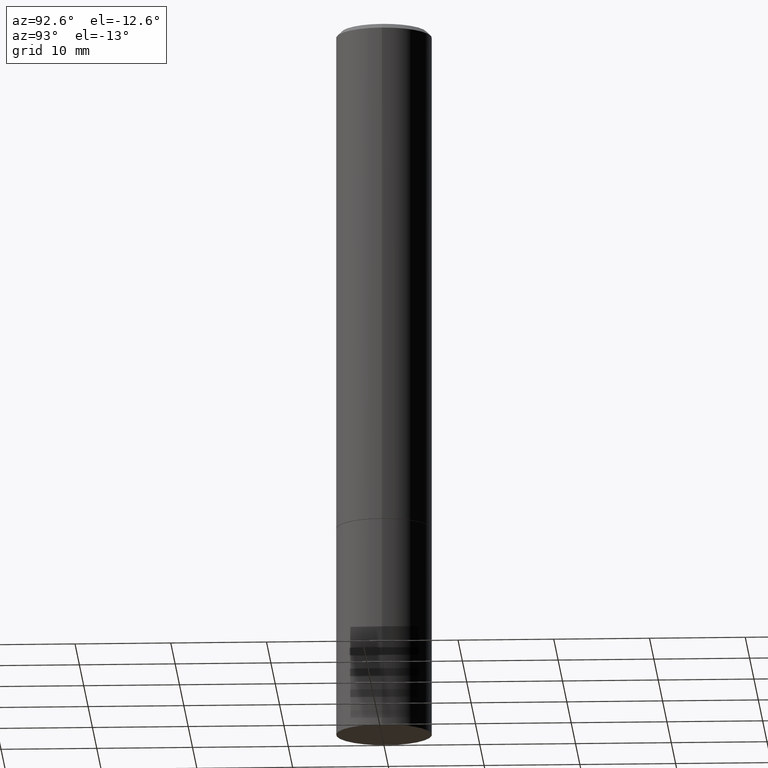
[diagram: clean part render]
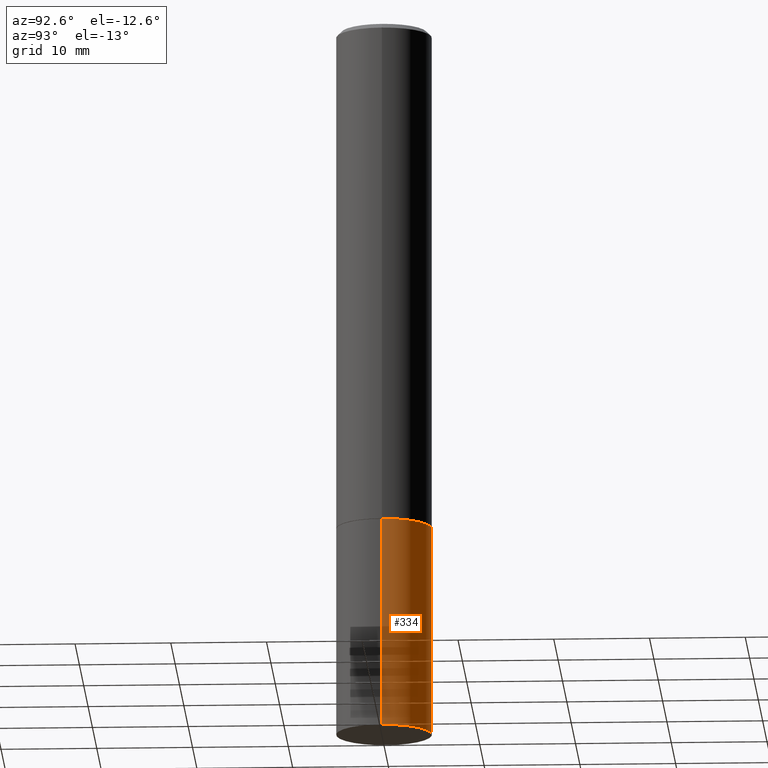
[diagram: same view with one face highlighted and labeled with its STEP entity id]
A machine part, auxiliary view. The second image highlights one B-rep face of the part: STEP entity #334.
In plain terms, the highlighted cylindrical surface (partial cylindrical patch) has radius 5 mm, axis along (-0, 0, 1).
Its self-contained STEP definition (entity closure, byte-faithful):
#3 = CARTESIAN_POINT ( 'NONE',  ( 0.1968500000000000250, -1.374596203102541608E-15, 9.598753983154300858E-30 ) ) ;
#10 = DIRECTION ( 'NONE',  ( -2.445468806185136597E-29, 3.491481338843145583E-15, 1.000000000000000000 ) ) ;
#32 = LINE ( 'NONE', #3, #119 ) ;
#34 = EDGE_CURVE ( 'NONE', #139, #48, #303, .T. ) ;
#42 = DIRECTION ( 'NONE',  ( 1.000000000000000000, -6.982962677686265922E-15, 4.876176775795935793E-29 ) ) ;
#48 = VERTEX_POINT ( 'NONE', #198 ) ;
#49 = CIRCLE ( 'NONE', #178, 0.1968500000000000250 ) ;
#64 = CARTESIAN_POINT ( 'NONE',  ( 0.000000000000000000, 0.000000000000000000, 0.000000000000000000 ) ) ;
#68 = ORIENTED_EDGE ( 'NONE', *, *, #269, .F. ) ;
#75 = VERTEX_POINT ( 'NONE', #257 ) ;
#89 = DIRECTION ( 'NONE',  ( -2.445468806185136597E-29, 3.491481338843145583E-15, 1.000000000000000000 ) ) ;
#98 = EDGE_CURVE ( 'NONE', #48, #75, #337, .T. ) ;
#99 = FACE_OUTER_BOUND ( 'NONE', #348, .T. ) ;
#103 = DIRECTION ( 'NONE',  ( -2.445468806185136597E-29, 3.491481338843145583E-15, 1.000000000000000000 ) ) ;
#110 = AXIS2_PLACEMENT_3D ( 'NONE', #64, #10, #42 ) ;
#113 = DIRECTION ( 'NONE',  ( -2.445468806185136877E-29, 3.491481338843145188E-15, 1.000000000000000000 ) ) ;
#117 = CARTESIAN_POINT ( 'NONE',  ( 0.1968500000000000250, -1.168424230043858014E-14, -2.952799999999999869 ) ) ;
#119 = VECTOR ( 'NONE', #113, 39.37007874015748143 ) ;
#139 = VERTEX_POINT ( 'NONE', #117 ) ;
#142 = VECTOR ( 'NONE', #202, 39.37007874015748143 ) ;
#143 = CARTESIAN_POINT ( 'NONE',  ( 0.1968500000000000250, -8.660270312866532536E-15, -2.086699999999999999 ) ) ;
#178 = AXIS2_PLACEMENT_3D ( 'NONE', #340, #89, #316 ) ;
#195 = VERTEX_POINT ( 'NONE', #143 ) ;
#198 = CARTESIAN_POINT ( 'NONE',  ( -0.1968500000000000250, -7.398956728206258518E-15, -2.952799999999999869 ) ) ;
#202 = DIRECTION ( 'NONE',  ( -2.445468806185136877E-29, 3.491481338843145188E-15, 1.000000000000000000 ) ) ;
#214 = CYLINDRICAL_SURFACE ( 'NONE', #110, 0.1968500000000000250 ) ;
#226 = ORIENTED_EDGE ( 'NONE', *, *, #260, .F. ) ;
#243 = ORIENTED_EDGE ( 'NONE', *, *, #34, .T. ) ;
#257 = CARTESIAN_POINT ( 'NONE',  ( -0.1968500000000000250, -7.398956728206258518E-15, -2.086699999999999999 ) ) ;
#260 = EDGE_CURVE ( 'NONE', #139, #195, #32, .T. ) ;
#269 = EDGE_CURVE ( 'NONE', #195, #75, #49, .T. ) ;
#285 = CARTESIAN_POINT ( 'NONE',  ( 7.220980290903470182E-29, -1.030964609733603853E-14, -2.952799999999999869 ) ) ;
#303 = CIRCLE ( 'NONE', #323, 0.1968500000000000250 ) ;
#305 = CARTESIAN_POINT ( 'NONE',  ( -0.1968500000000000250, 1.398703375343757393E-15, -9.682923725166783677E-30 ) ) ;
#316 = DIRECTION ( 'NONE',  ( 1.000000000000000000, -6.982962677686267499E-15, 0.000000000000000000 ) ) ;
#322 = ORIENTED_EDGE ( 'NONE', *, *, #98, .T. ) ;
#323 = AXIS2_PLACEMENT_3D ( 'NONE', #285, #103, #363 ) ;
#334 = ADVANCED_FACE ( 'NONE', ( #99 ), #214, .T. ) ;
#337 = LINE ( 'NONE', #305, #142 ) ;
#340 = CARTESIAN_POINT ( 'NONE',  ( 5.102959757866523939E-29, -7.285674109763990928E-15, -2.086699999999999999 ) ) ;
#348 = EDGE_LOOP ( 'NONE', ( #243, #322, #68, #226 ) ) ;
#363 = DIRECTION ( 'NONE',  ( 1.000000000000000000, -6.982962677686267499E-15, 0.000000000000000000 ) ) ;